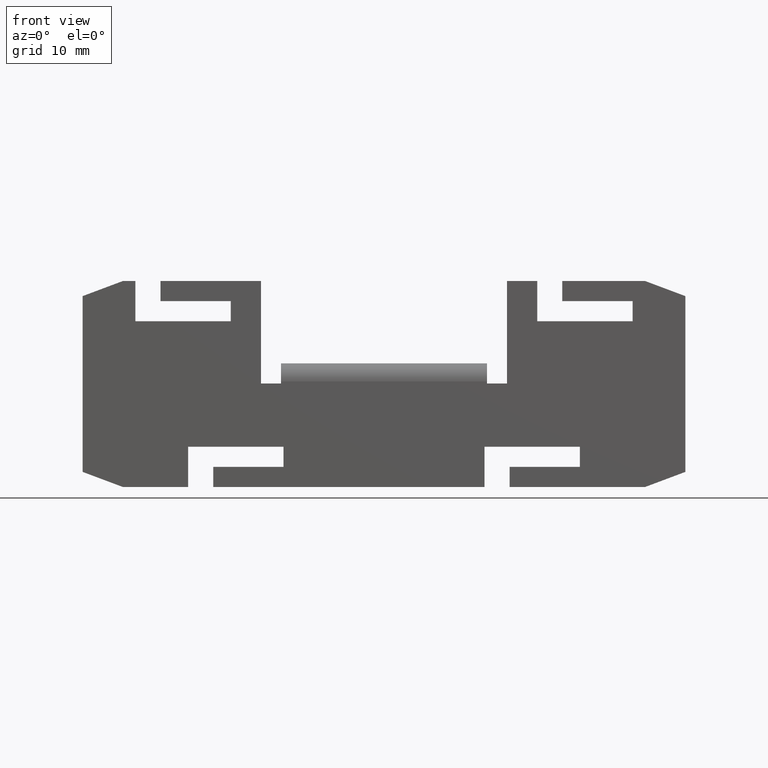
[diagram: clean part render]
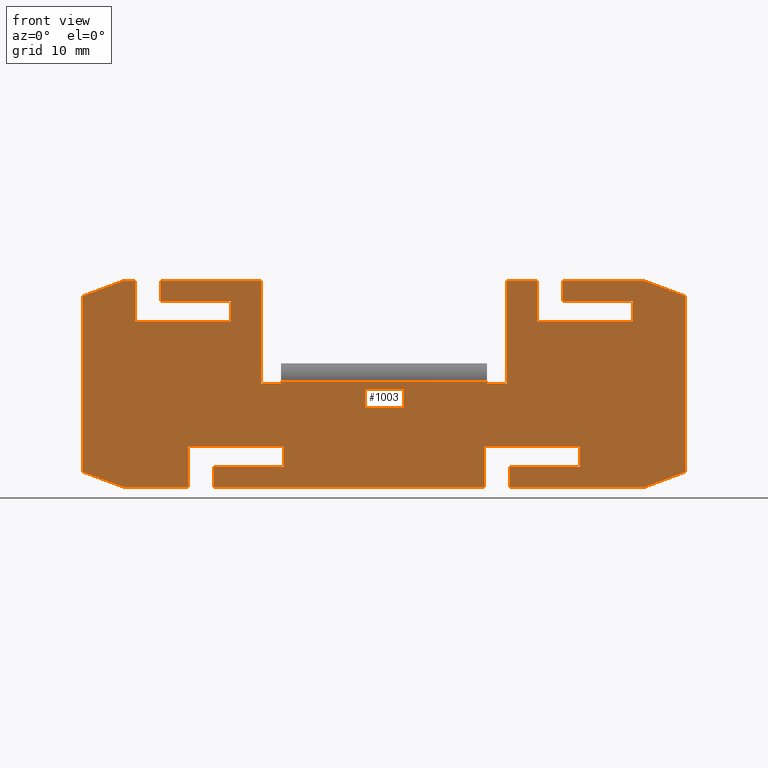
[diagram: same view with one face highlighted and labeled with its STEP entity id]
A machine part, front view. The second image highlights one B-rep face of the part: STEP entity #1003.
In plain terms, the highlighted planar face has unit normal (0, -1, 0).
Its self-contained STEP definition (entity closure, byte-faithful):
#53=FACE_OUTER_BOUND('',#103,.T.);
#103=EDGE_LOOP('',(#735,#736,#737,#738,#739,#740,#741,#742,#743,#744,#745,
#746,#747,#748,#749,#750,#751,#752,#753,#754,#755,#756,#757,#758,#759,#760,
#761,#762,#763,#764,#765,#766,#767,#768,#769,#770,#771,#772,#773,#774));
#137=LINE('',#1374,#273);
#141=LINE('',#1383,#277);
#144=LINE('',#1389,#280);
#147=LINE('',#1395,#283);
#150=LINE('',#1399,#286);
#153=LINE('',#1407,#289);
#156=LINE('',#1413,#292);
#159=LINE('',#1419,#295);
#163=LINE('',#1428,#299);
#166=LINE('',#1432,#302);
#169=LINE('',#1440,#305);
#173=LINE('',#1449,#309);
#176=LINE('',#1455,#312);
#179=LINE('',#1461,#315);
#182=LINE('',#1465,#318);
#185=LINE('',#1473,#321);
#188=LINE('',#1479,#324);
#191=LINE('',#1485,#327);
#195=LINE('',#1494,#331);
#198=LINE('',#1498,#334);
#201=LINE('',#1504,#337);
#204=LINE('',#1510,#340);
#205=LINE('',#1513,#341);
#206=LINE('',#1515,#342);
#207=LINE('',#1517,#343);
#208=LINE('',#1519,#344);
#209=LINE('',#1521,#345);
#210=LINE('',#1523,#346);
#211=LINE('',#1525,#347);
#212=LINE('',#1526,#348);
#213=LINE('',#1528,#349);
#214=LINE('',#1530,#350);
#215=LINE('',#1532,#351);
#216=LINE('',#1533,#352);
#217=LINE('',#1534,#353);
#218=LINE('',#1536,#354);
#219=LINE('',#1538,#355);
#220=LINE('',#1540,#356);
#221=LINE('',#1542,#357);
#222=LINE('',#1543,#358);
#273=VECTOR('',#1118,10.);
#277=VECTOR('',#1124,10.);
#280=VECTOR('',#1129,10.);
#283=VECTOR('',#1134,10.);
#286=VECTOR('',#1139,10.);
#289=VECTOR('',#1144,10.);
#292=VECTOR('',#1149,10.);
#295=VECTOR('',#1154,10.);
#299=VECTOR('',#1160,10.);
#302=VECTOR('',#1165,10.);
#305=VECTOR('',#1170,10.);
#309=VECTOR('',#1176,10.);
#312=VECTOR('',#1181,10.);
#315=VECTOR('',#1186,10.);
#318=VECTOR('',#1191,10.);
#321=VECTOR('',#1196,10.);
#324=VECTOR('',#1201,10.);
#327=VECTOR('',#1206,10.);
#331=VECTOR('',#1212,10.);
#334=VECTOR('',#1217,10.);
#337=VECTOR('',#1222,10.);
#340=VECTOR('',#1227,10.);
#341=VECTOR('',#1230,10.);
#342=VECTOR('',#1231,10.);
#343=VECTOR('',#1232,10.);
#344=VECTOR('',#1233,10.);
#345=VECTOR('',#1234,10.);
#346=VECTOR('',#1235,10.);
#347=VECTOR('',#1236,10.);
#348=VECTOR('',#1237,10.);
#349=VECTOR('',#1238,10.);
#350=VECTOR('',#1239,10.);
#351=VECTOR('',#1240,10.);
#352=VECTOR('',#1241,10.);
#353=VECTOR('',#1242,10.);
#354=VECTOR('',#1243,10.);
#355=VECTOR('',#1244,10.);
#356=VECTOR('',#1245,10.);
#357=VECTOR('',#1246,10.);
#358=VECTOR('',#1247,10.);
#409=VERTEX_POINT('',#1371);
#410=VERTEX_POINT('',#1373);
#413=VERTEX_POINT('',#1380);
#414=VERTEX_POINT('',#1382);
#416=VERTEX_POINT('',#1388);
#418=VERTEX_POINT('',#1394);
#421=VERTEX_POINT('',#1404);
#422=VERTEX_POINT('',#1406);
#424=VERTEX_POINT('',#1412);
#426=VERTEX_POINT('',#1418);
#429=VERTEX_POINT('',#1425);
#430=VERTEX_POINT('',#1427);
#433=VERTEX_POINT('',#1437);
#434=VERTEX_POINT('',#1439);
#437=VERTEX_POINT('',#1446);
#438=VERTEX_POINT('',#1448);
#440=VERTEX_POINT('',#1454);
#442=VERTEX_POINT('',#1460);
#445=VERTEX_POINT('',#1470);
#446=VERTEX_POINT('',#1472);
#448=VERTEX_POINT('',#1478);
#450=VERTEX_POINT('',#1484);
#453=VERTEX_POINT('',#1491);
#454=VERTEX_POINT('',#1493);
#456=VERTEX_POINT('',#1502);
#458=VERTEX_POINT('',#1508);
#459=VERTEX_POINT('',#1512);
#460=VERTEX_POINT('',#1514);
#461=VERTEX_POINT('',#1516);
#462=VERTEX_POINT('',#1518);
#463=VERTEX_POINT('',#1520);
#464=VERTEX_POINT('',#1522);
#465=VERTEX_POINT('',#1524);
#466=VERTEX_POINT('',#1527);
#467=VERTEX_POINT('',#1529);
#468=VERTEX_POINT('',#1531);
#469=VERTEX_POINT('',#1535);
#470=VERTEX_POINT('',#1537);
#471=VERTEX_POINT('',#1539);
#472=VERTEX_POINT('',#1541);
#505=EDGE_CURVE('',#410,#409,#137,.T.);
#509=EDGE_CURVE('',#414,#413,#141,.T.);
#512=EDGE_CURVE('',#416,#414,#144,.T.);
#515=EDGE_CURVE('',#418,#416,#147,.T.);
#518=EDGE_CURVE('',#409,#418,#150,.T.);
#521=EDGE_CURVE('',#422,#421,#153,.T.);
#524=EDGE_CURVE('',#424,#422,#156,.T.);
#527=EDGE_CURVE('',#426,#424,#159,.T.);
#531=EDGE_CURVE('',#430,#429,#163,.T.);
#534=EDGE_CURVE('',#421,#430,#166,.T.);
#537=EDGE_CURVE('',#434,#433,#169,.T.);
#541=EDGE_CURVE('',#438,#437,#173,.T.);
#544=EDGE_CURVE('',#440,#438,#176,.T.);
#547=EDGE_CURVE('',#442,#440,#179,.T.);
#550=EDGE_CURVE('',#433,#442,#182,.T.);
#553=EDGE_CURVE('',#446,#445,#185,.T.);
#556=EDGE_CURVE('',#448,#446,#188,.T.);
#559=EDGE_CURVE('',#450,#448,#191,.T.);
#563=EDGE_CURVE('',#454,#453,#195,.T.);
#566=EDGE_CURVE('',#445,#454,#198,.T.);
#569=EDGE_CURVE('',#413,#456,#201,.T.);
#572=EDGE_CURVE('',#458,#437,#204,.T.);
#573=EDGE_CURVE('',#456,#459,#205,.T.);
#574=EDGE_CURVE('',#459,#460,#206,.T.);
#575=EDGE_CURVE('',#460,#461,#207,.T.);
#576=EDGE_CURVE('',#461,#462,#208,.T.);
#577=EDGE_CURVE('',#462,#463,#209,.T.);
#578=EDGE_CURVE('',#463,#464,#210,.T.);
#579=EDGE_CURVE('',#464,#465,#211,.T.);
#580=EDGE_CURVE('',#434,#465,#212,.T.);
#581=EDGE_CURVE('',#458,#466,#213,.T.);
#582=EDGE_CURVE('',#467,#466,#214,.T.);
#583=EDGE_CURVE('',#467,#468,#215,.T.);
#584=EDGE_CURVE('',#468,#426,#216,.T.);
#585=EDGE_CURVE('',#429,#450,#217,.T.);
#586=EDGE_CURVE('',#453,#469,#218,.T.);
#587=EDGE_CURVE('',#469,#470,#219,.T.);
#588=EDGE_CURVE('',#470,#471,#220,.T.);
#589=EDGE_CURVE('',#471,#472,#221,.T.);
#590=EDGE_CURVE('',#472,#410,#222,.T.);
#735=ORIENTED_EDGE('',*,*,#505,.T.);
#736=ORIENTED_EDGE('',*,*,#518,.T.);
#737=ORIENTED_EDGE('',*,*,#515,.T.);
#738=ORIENTED_EDGE('',*,*,#512,.T.);
#739=ORIENTED_EDGE('',*,*,#509,.T.);
#740=ORIENTED_EDGE('',*,*,#569,.T.);
#741=ORIENTED_EDGE('',*,*,#573,.T.);
#742=ORIENTED_EDGE('',*,*,#574,.T.);
#743=ORIENTED_EDGE('',*,*,#575,.T.);
#744=ORIENTED_EDGE('',*,*,#576,.T.);
#745=ORIENTED_EDGE('',*,*,#577,.T.);
#746=ORIENTED_EDGE('',*,*,#578,.T.);
#747=ORIENTED_EDGE('',*,*,#579,.T.);
#748=ORIENTED_EDGE('',*,*,#580,.F.);
#749=ORIENTED_EDGE('',*,*,#537,.T.);
#750=ORIENTED_EDGE('',*,*,#550,.T.);
#751=ORIENTED_EDGE('',*,*,#547,.T.);
#752=ORIENTED_EDGE('',*,*,#544,.T.);
#753=ORIENTED_EDGE('',*,*,#541,.T.);
#754=ORIENTED_EDGE('',*,*,#572,.F.);
#755=ORIENTED_EDGE('',*,*,#581,.T.);
#756=ORIENTED_EDGE('',*,*,#582,.F.);
#757=ORIENTED_EDGE('',*,*,#583,.T.);
#758=ORIENTED_EDGE('',*,*,#584,.T.);
#759=ORIENTED_EDGE('',*,*,#527,.T.);
#760=ORIENTED_EDGE('',*,*,#524,.T.);
#761=ORIENTED_EDGE('',*,*,#521,.T.);
#762=ORIENTED_EDGE('',*,*,#534,.T.);
#763=ORIENTED_EDGE('',*,*,#531,.T.);
#764=ORIENTED_EDGE('',*,*,#585,.T.);
#765=ORIENTED_EDGE('',*,*,#559,.T.);
#766=ORIENTED_EDGE('',*,*,#556,.T.);
#767=ORIENTED_EDGE('',*,*,#553,.T.);
#768=ORIENTED_EDGE('',*,*,#566,.T.);
#769=ORIENTED_EDGE('',*,*,#563,.T.);
#770=ORIENTED_EDGE('',*,*,#586,.T.);
#771=ORIENTED_EDGE('',*,*,#587,.T.);
#772=ORIENTED_EDGE('',*,*,#588,.T.);
#773=ORIENTED_EDGE('',*,*,#589,.T.);
#774=ORIENTED_EDGE('',*,*,#590,.T.);
#957=PLANE('',#1076);
#1003=ADVANCED_FACE('',(#53),#957,.T.);
#1076=AXIS2_PLACEMENT_3D('',#1511,#1228,#1229);
#1118=DIRECTION('',(0.,0.,-1.));
#1124=DIRECTION('',(0.,0.,1.));
#1129=DIRECTION('',(-1.,0.,1.1686558153949E-16));
#1134=DIRECTION('',(0.,0.,-1.));
#1139=DIRECTION('',(1.,0.,0.));
#1144=DIRECTION('',(0.,0.,-1.));
#1149=DIRECTION('',(1.,0.,-2.3373116307898E-16));
#1154=DIRECTION('',(0.,0.,1.));
#1160=DIRECTION('',(1.11022302462516E-15,0.,-1.));
#1165=DIRECTION('',(-1.,0.,0.));
#1170=DIRECTION('',(0.,0.,-1.));
#1176=DIRECTION('',(0.,0.,1.));
#1181=DIRECTION('',(-1.,0.,1.1686558153949E-16));
#1186=DIRECTION('',(0.,0.,-1.));
#1191=DIRECTION('',(1.,0.,0.));
#1196=DIRECTION('',(0.,0.,-1.));
#1201=DIRECTION('',(1.,0.,-1.1686558153949E-16));
#1206=DIRECTION('',(0.,0.,1.));
#1212=DIRECTION('',(0.,0.,-1.));
#1217=DIRECTION('',(-1.,0.,0.));
#1222=DIRECTION('',(-1.,0.,0.));
#1227=DIRECTION('',(1.,0.,0.));
#1228=DIRECTION('center_axis',(0.,-1.,0.));
#1229=DIRECTION('ref_axis',(0.,0.,-1.));
#1230=DIRECTION('',(-4.35381578284375E-16,0.,-1.));
#1231=DIRECTION('',(-1.,0.,1.11022302462516E-15));
#1232=DIRECTION('',(0.,0.,1.));
#1233=DIRECTION('',(-1.,0.,0.));
#1234=DIRECTION('',(0.,0.,-1.));
#1235=DIRECTION('',(-1.,0.,-1.11022302462516E-15));
#1236=DIRECTION('',(-4.35381578284375E-16,0.,1.));
#1237=DIRECTION('',(1.,0.,0.));
#1238=DIRECTION('',(-0.936329177569044,0.,-0.351123441588393));
#1239=DIRECTION('',(0.,0.,1.));
#1240=DIRECTION('',(0.936329177569045,0.,-0.351123441588391));
#1241=DIRECTION('',(1.,0.,0.));
#1242=DIRECTION('',(1.,0.,0.));
#1243=DIRECTION('',(1.,0.,0.));
#1244=DIRECTION('',(0.936329177569045,0.,0.351123441588391));
#1245=DIRECTION('',(0.,0.,1.));
#1246=DIRECTION('',(-0.936329177569044,0.,0.351123441588393));
#1247=DIRECTION('',(-1.,0.,0.));
#1371=CARTESIAN_POINT('',(17.75,0.,8.25));
#1373=CARTESIAN_POINT('',(17.75,0.,10.25));
#1374=CARTESIAN_POINT('',(17.75,-7.7715611723761E-15,4.125));
#1380=CARTESIAN_POINT('',(15.25,0.,10.25));
#1382=CARTESIAN_POINT('',(15.25,0.,6.25));
#1383=CARTESIAN_POINT('',(15.25,-7.7715611723761E-15,5.125));
#1388=CARTESIAN_POINT('',(24.75,0.,6.25));
#1389=CARTESIAN_POINT('',(22.625,-7.7715611723761E-15,6.25));
#1394=CARTESIAN_POINT('',(24.75,0.,8.25));
#1395=CARTESIAN_POINT('',(24.75,-7.7715611723761E-15,3.125));
#1399=CARTESIAN_POINT('',(27.375,-7.7715611723761E-15,8.25));
#1404=CARTESIAN_POINT('',(-10.,0.,-8.25));
#1406=CARTESIAN_POINT('',(-10.,0.,-6.25));
#1407=CARTESIAN_POINT('',(-10.,-7.7715611723761E-15,-4.125));
#1412=CARTESIAN_POINT('',(-19.5,0.,-6.25));
#1413=CARTESIAN_POINT('',(10.,-7.7715611723761E-15,-6.25));
#1418=CARTESIAN_POINT('',(-19.5,0.,-10.25));
#1419=CARTESIAN_POINT('',(-19.5,-7.7715611723761E-15,-3.125));
#1425=CARTESIAN_POINT('',(-17.,0.,-10.25));
#1427=CARTESIAN_POINT('',(-17.,0.,-8.25));
#1428=CARTESIAN_POINT('',(-17.,-7.7715611723761E-15,-5.12500000000002));
#1432=CARTESIAN_POINT('',(6.5,-7.7715611723761E-15,-8.25));
#1437=CARTESIAN_POINT('',(-22.25,0.,8.25));
#1439=CARTESIAN_POINT('',(-22.25,0.,10.25));
#1440=CARTESIAN_POINT('',(-22.25,-7.7715611723761E-15,4.125));
#1446=CARTESIAN_POINT('',(-24.75,0.,10.25));
#1448=CARTESIAN_POINT('',(-24.75,0.,6.25));
#1449=CARTESIAN_POINT('',(-24.75,-7.7715611723761E-15,5.125));
#1454=CARTESIAN_POINT('',(-15.25,0.,6.25));
#1455=CARTESIAN_POINT('',(2.625,-7.7715611723761E-15,6.25));
#1460=CARTESIAN_POINT('',(-15.25,0.,8.25));
#1461=CARTESIAN_POINT('',(-15.25,-7.7715611723761E-15,3.125));
#1465=CARTESIAN_POINT('',(7.375,-7.7715611723761E-15,8.25));
#1470=CARTESIAN_POINT('',(19.5,0.,-8.25));
#1472=CARTESIAN_POINT('',(19.5,0.,-6.25));
#1473=CARTESIAN_POINT('',(19.5,-7.7715611723761E-15,-4.125));
#1478=CARTESIAN_POINT('',(10.,0.,-6.25));
#1479=CARTESIAN_POINT('',(24.75,-7.7715611723761E-15,-6.25));
#1484=CARTESIAN_POINT('',(10.,0.,-10.25));
#1485=CARTESIAN_POINT('',(10.,-7.7715611723761E-15,-3.125));
#1491=CARTESIAN_POINT('',(12.5,0.,-10.25));
#1493=CARTESIAN_POINT('',(12.5,0.,-8.25));
#1494=CARTESIAN_POINT('',(12.5,-7.7715611723761E-15,-5.125));
#1498=CARTESIAN_POINT('',(21.25,-7.7715611723761E-15,-8.25));
#1502=CARTESIAN_POINT('',(12.25,-7.7715611723761E-15,10.25));
#1504=CARTESIAN_POINT('',(30.,-7.7715611723761E-15,10.25));
#1508=CARTESIAN_POINT('',(-26.,-7.7715611723761E-15,10.25));
#1510=CARTESIAN_POINT('',(-30.,-7.7715611723761E-15,10.25));
#1511=CARTESIAN_POINT('Origin',(30.,-7.7715611723761E-15,0.));
#1512=CARTESIAN_POINT('',(12.25,-7.7715611723761E-15,0.0499999999999989));
#1513=CARTESIAN_POINT('',(12.25,-7.7715611723761E-15,5.12500000000001));
#1514=CARTESIAN_POINT('',(10.25,-7.7715611723761E-15,0.0500000000000012));
#1515=CARTESIAN_POINT('',(21.125,-7.7715611723761E-15,0.0499999999999891));
#1516=CARTESIAN_POINT('',(10.25,-8.04911692853238E-15,0.25));
#1517=CARTESIAN_POINT('',(10.25,-7.7715611723761E-15,0.0250000000000006));
#1518=CARTESIAN_POINT('',(-10.25,-8.04911692853238E-15,0.25));
#1519=CARTESIAN_POINT('',(20.125,-7.7715611723761E-15,0.25));
#1520=CARTESIAN_POINT('',(-10.25,-7.7715611723761E-15,0.0500000000000012));
#1521=CARTESIAN_POINT('',(-10.25,-7.7715611723761E-15,0.0250000000000006));
#1522=CARTESIAN_POINT('',(-12.25,-7.7715611723761E-15,0.0499999999999989));
#1523=CARTESIAN_POINT('',(8.875,-7.7715611723761E-15,0.0500000000000224));
#1524=CARTESIAN_POINT('',(-12.25,-7.7715611723761E-15,10.25));
#1525=CARTESIAN_POINT('',(-12.25,-7.7715611723761E-15,5.12499999999999));
#1526=CARTESIAN_POINT('',(-30.,-7.7715611723761E-15,10.25));
#1527=CARTESIAN_POINT('',(-30.,-7.7715611723761E-15,8.75));
#1528=CARTESIAN_POINT('',(-5.13698630136988,-7.7715611723761E-15,18.0736301369863));
#1529=CARTESIAN_POINT('',(-30.,-7.7715611723761E-15,-8.75));
#1530=CARTESIAN_POINT('',(-30.,-7.7715611723761E-15,0.));
#1531=CARTESIAN_POINT('',(-26.,-7.7715611723761E-15,-10.25));
#1532=CARTESIAN_POINT('',(-3.13698630136986,-7.7715611723761E-15,-18.8236301369863));
#1533=CARTESIAN_POINT('',(30.,-7.7715611723761E-15,-10.25));
#1534=CARTESIAN_POINT('',(30.,-7.7715611723761E-15,-10.25));
#1535=CARTESIAN_POINT('',(26.,-7.7715611723761E-15,-10.25));
#1536=CARTESIAN_POINT('',(30.,-7.7715611723761E-15,-10.25));
#1537=CARTESIAN_POINT('',(30.,-7.7715611723761E-15,-8.75));
#1538=CARTESIAN_POINT('',(29.4383561643836,-7.7715611723761E-15,-8.96061643835617));
#1539=CARTESIAN_POINT('',(30.,-7.7715611723761E-15,8.75));
#1540=CARTESIAN_POINT('',(30.,-7.7715611723761E-15,0.));
#1541=CARTESIAN_POINT('',(26.,-7.7715611723761E-15,10.25));
#1542=CARTESIAN_POINT('',(31.4383561643836,-7.7715611723761E-15,8.21061643835616));
#1543=CARTESIAN_POINT('',(30.,-7.7715611723761E-15,10.25));